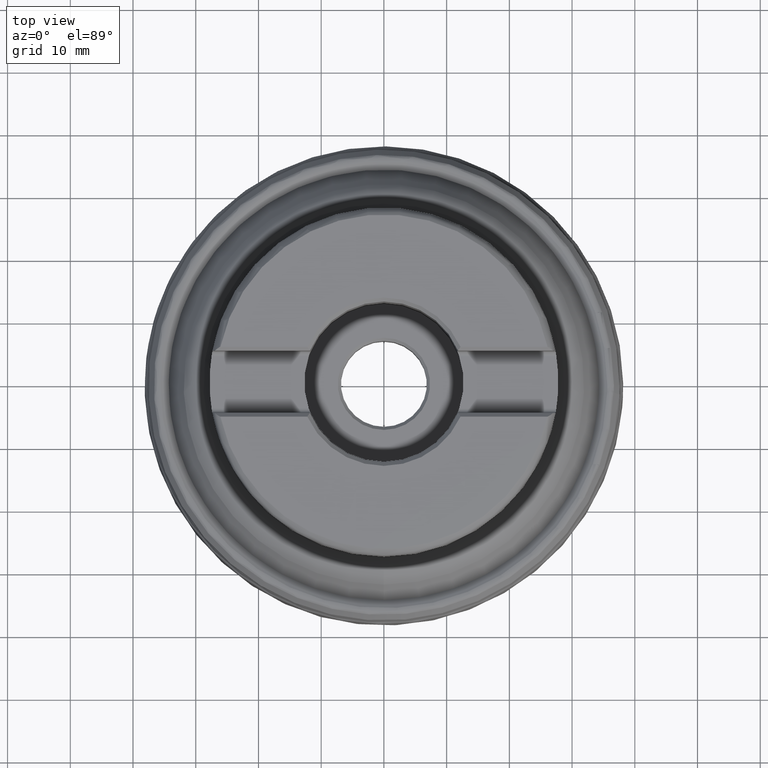
[diagram: clean part render]
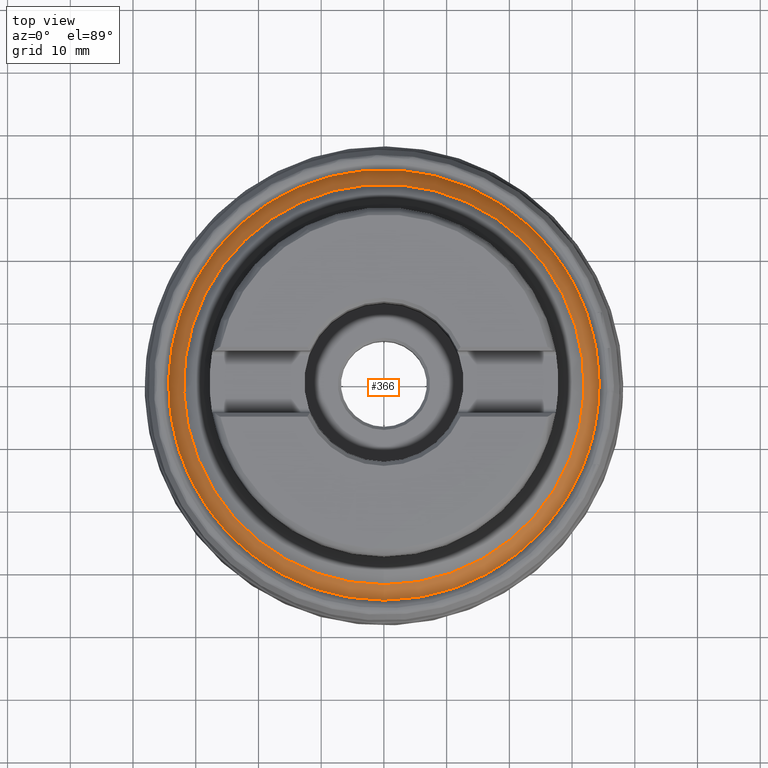
[diagram: same view with one face highlighted and labeled with its STEP entity id]
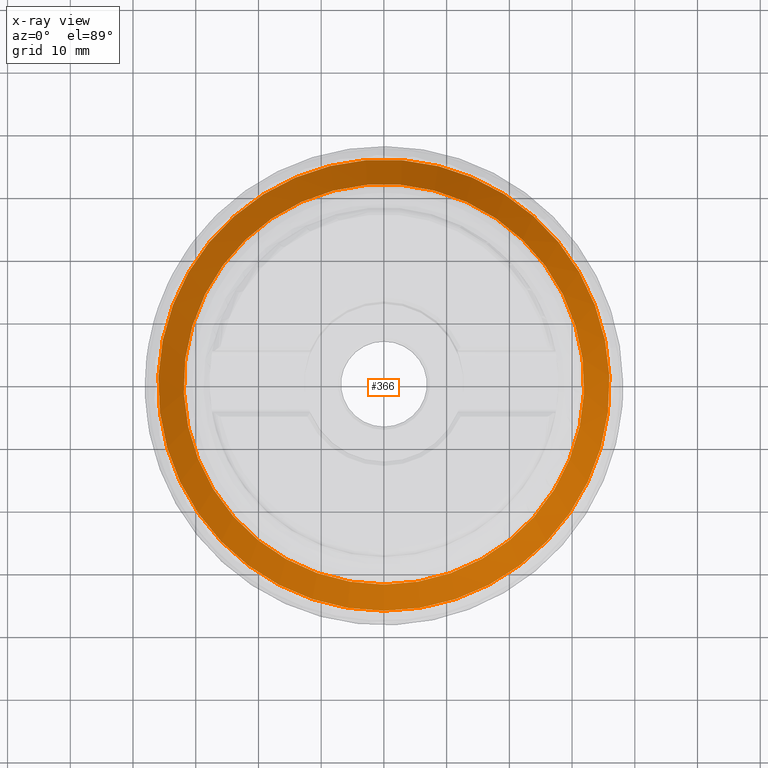
[diagram: x-ray of the same camera — body ghosted, the highlighted face saturated]
A machine part, top view. The second image highlights one B-rep face of the part: STEP entity #366.
The next image is the same camera in x-ray: the body ghosted, the highlighted face saturated — about 0% of this face is hidden behind the body in this view.
In plain terms, the highlighted conical surface has half-angle 30 deg.
Its self-contained STEP definition (entity closure, byte-faithful):
#157=CONICAL_SURFACE('',#1219,36.1161825423602,30.0000000000001);
#255=FACE_BOUND('',#485,.T.);
#256=FACE_BOUND('',#486,.T.);
#366=ADVANCED_FACE('',(#255,#256),#157,.T.);
#485=EDGE_LOOP('',(#708));
#486=EDGE_LOOP('',(#709));
#620=CIRCLE('',#1217,31.9284817829424);
#621=CIRCLE('',#1218,35.9845300447728);
#708=ORIENTED_EDGE('',*,*,#1042,.T.);
#709=ORIENTED_EDGE('',*,*,#1043,.T.);
#940=VERTEX_POINT('',#2065);
#941=VERTEX_POINT('',#2067);
#1042=EDGE_CURVE('',#940,#940,#620,.T.);
#1043=EDGE_CURVE('',#941,#941,#621,.T.);
#1217=AXIS2_PLACEMENT_3D('',#2064,#1367,#1368);
#1218=AXIS2_PLACEMENT_3D('',#2066,#1369,#1370);
#1219=AXIS2_PLACEMENT_3D('',#2068,#1371,#1372);
#1367=DIRECTION('',(0.,-1.17145536458252E-15,-1.));
#1368=DIRECTION('',(0.,-1.,1.19529380478963E-15));
#1369=DIRECTION('',(0.,1.17145536458252E-15,1.));
#1370=DIRECTION('',(0.,-1.,1.1569794956789E-15));
#1371=DIRECTION('',(0.,-1.17145536458252E-15,-1.));
#1372=DIRECTION('',(0.,1.,-1.11695720454849E-15));
#2064=CARTESIAN_POINT('',(0.,2.29058304597283E-14,19.5533104822063));
#2065=CARTESIAN_POINT('',(0.,-31.9284817829424,19.5533104822063));
#2066=CARTESIAN_POINT('',(0.,1.46760265627005E-14,12.5280288147647));
#2067=CARTESIAN_POINT('',(0.,-35.9845300447728,12.5280288147647));
#2068=CARTESIAN_POINT('',(0.,1.4408900984365E-14,12.3));